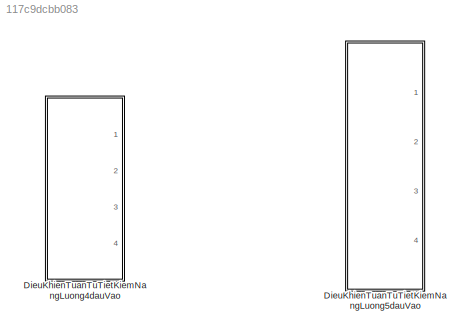
MODEL slx_117c9dcbb083
KIND model
CONFIG AbsTol = auto
CONFIG EnableMultiTasking = off
CONFIG FixedStep = auto
CONFIG MaxStep = auto
CONFIG MinStep = auto
CONFIG RelTol = 1e-3
CONFIG SampleTimeConstraint = Unconstrained
CONFIG Solver = VariableStepAuto
CONFIG SolverName = VariableStepAuto
CONFIG StartTime = 0.0
CONFIG StopTime = 10.0
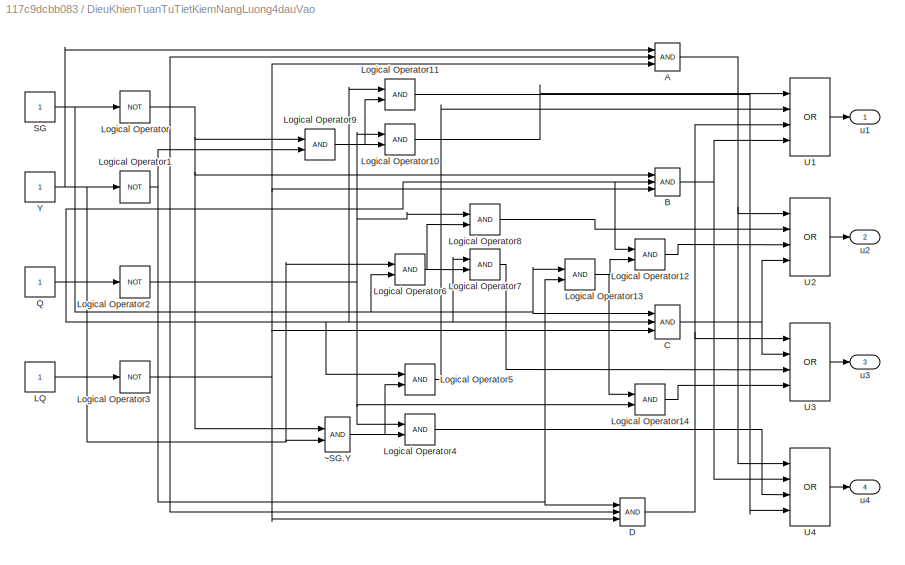
BLOCK [SubSystem] DieuKhienTuanTuTietKiemNangLuong4dauVao 
  Ports = [0, 4]
  RequestExecContextInheritance = off
BLOCK [Logic] DieuKhienTuanTuTietKiemNangLuong4dauVao /A
  AllPortsSameDT = off
  Inputs = 3
  OutDataTypeStr = boolean
  Ports = [3, 1]
BLOCK [Logic] DieuKhienTuanTuTietKiemNangLuong4dauVao /B
  AllPortsSameDT = off
  Inputs = 3
  OutDataTypeStr = boolean
  Ports = [3, 1]
BLOCK [Logic] DieuKhienTuanTuTietKiemNangLuong4dauVao /C
  AllPortsSameDT = off
  Inputs = 3
  OutDataTypeStr = boolean
  Ports = [3, 1]
BLOCK [Logic] DieuKhienTuanTuTietKiemNangLuong4dauVao /D
  AllPortsSameDT = off
  Inputs = 3
  OutDataTypeStr = boolean
  Ports = [3, 1]
BLOCK [Constant] DieuKhienTuanTuTietKiemNangLuong4dauVao /LQ
BLOCK [Logic] DieuKhienTuanTuTietKiemNangLuong4dauVao /Logical Operator
  AllPortsSameDT = off
  Operator = NOT
  OutDataTypeStr = boolean
  Ports = [1, 1]
BLOCK [Logic] DieuKhienTuanTuTietKiemNangLuong4dauVao /Logical Operator1
  AllPortsSameDT = off
  Operator = NOT
  OutDataTypeStr = boolean
  Ports = [1, 1]
BLOCK [Logic] DieuKhienTuanTuTietKiemNangLuong4dauVao /Logical Operator10
  AllPortsSameDT = off
  OutDataTypeStr = boolean
  Ports = [2, 1]
BLOCK [Logic] DieuKhienTuanTuTietKiemNangLuong4dauVao /Logical Operator11
  AllPortsSameDT = off
  OutDataTypeStr = boolean
  Ports = [2, 1]
BLOCK [Logic] DieuKhienTuanTuTietKiemNangLuong4dauVao /Logical Operator12
  AllPortsSameDT = off
  OutDataTypeStr = boolean
  Ports = [2, 1]
BLOCK [Logic] DieuKhienTuanTuTietKiemNangLuong4dauVao /Logical Operator13
  AllPortsSameDT = off
  OutDataTypeStr = boolean
  Ports = [2, 1]
BLOCK [Logic] DieuKhienTuanTuTietKiemNangLuong4dauVao /Logical Operator14
  AllPortsSameDT = off
  OutDataTypeStr = boolean
  Ports = [2, 1]
BLOCK [Logic] DieuKhienTuanTuTietKiemNangLuong4dauVao /Logical Operator2
  AllPortsSameDT = off
  Operator = NOT
  OutDataTypeStr = boolean
  Ports = [1, 1]
BLOCK [Logic] DieuKhienTuanTuTietKiemNangLuong4dauVao /Logical Operator3
  AllPortsSameDT = off
  Operator = NOT
  OutDataTypeStr = boolean
  Ports = [1, 1]
BLOCK [Logic] DieuKhienTuanTuTietKiemNangLuong4dauVao /Logical Operator4
  AllPortsSameDT = off
  OutDataTypeStr = boolean
  Ports = [2, 1]
BLOCK [Logic] DieuKhienTuanTuTietKiemNangLuong4dauVao /Logical Operator5
  AllPortsSameDT = off
  OutDataTypeStr = boolean
  Ports = [2, 1]
BLOCK [Logic] DieuKhienTuanTuTietKiemNangLuong4dauVao /Logical Operator6
  AllPortsSameDT = off
  OutDataTypeStr = boolean
  Ports = [2, 1]
BLOCK [Logic] DieuKhienTuanTuTietKiemNangLuong4dauVao /Logical Operator7
  AllPortsSameDT = off
  OutDataTypeStr = boolean
  Ports = [2, 1]
BLOCK [Logic] DieuKhienTuanTuTietKiemNangLuong4dauVao /Logical Operator8
  AllPortsSameDT = off
  OutDataTypeStr = boolean
  Ports = [2, 1]
BLOCK [Logic] DieuKhienTuanTuTietKiemNangLuong4dauVao /Logical Operator9
  AllPortsSameDT = off
  OutDataTypeStr = boolean
  Ports = [2, 1]
BLOCK [Constant] DieuKhienTuanTuTietKiemNangLuong4dauVao /Q
BLOCK [Constant] DieuKhienTuanTuTietKiemNangLuong4dauVao /SG
BLOCK [Logic] DieuKhienTuanTuTietKiemNangLuong4dauVao /U1
  AllPortsSameDT = off
  Inputs = 4
  Operator = OR
  OutDataTypeStr = boolean
  Ports = [4, 1]
BLOCK [Logic] DieuKhienTuanTuTietKiemNangLuong4dauVao /U2
  AllPortsSameDT = off
  Inputs = 4
  Operator = OR
  OutDataTypeStr = boolean
  Ports = [4, 1]
BLOCK [Logic] DieuKhienTuanTuTietKiemNangLuong4dauVao /U3
  AllPortsSameDT = off
  Inputs = 4
  Operator = OR
  OutDataTypeStr = boolean
  Ports = [4, 1]
BLOCK [Logic] DieuKhienTuanTuTietKiemNangLuong4dauVao /U4
  AllPortsSameDT = off
  Inputs = 4
  Operator = OR
  OutDataTypeStr = boolean
  Ports = [4, 1]
BLOCK [Constant] DieuKhienTuanTuTietKiemNangLuong4dauVao /Y
BLOCK [Outport] DieuKhienTuanTuTietKiemNangLuong4dauVao /u1
  IconDisplay = Port number
BLOCK [Outport] DieuKhienTuanTuTietKiemNangLuong4dauVao /u2 
  IconDisplay = Port number
  Port = 2
BLOCK [Outport] DieuKhienTuanTuTietKiemNangLuong4dauVao /u3
  IconDisplay = Port number
  Port = 3
BLOCK [Outport] DieuKhienTuanTuTietKiemNangLuong4dauVao /u4
  IconDisplay = Port number
  Port = 4
BLOCK [Logic] DieuKhienTuanTuTietKiemNangLuong4dauVao /~SG.Y
  AllPortsSameDT = off
  OutDataTypeStr = boolean
  Ports = [2, 1]
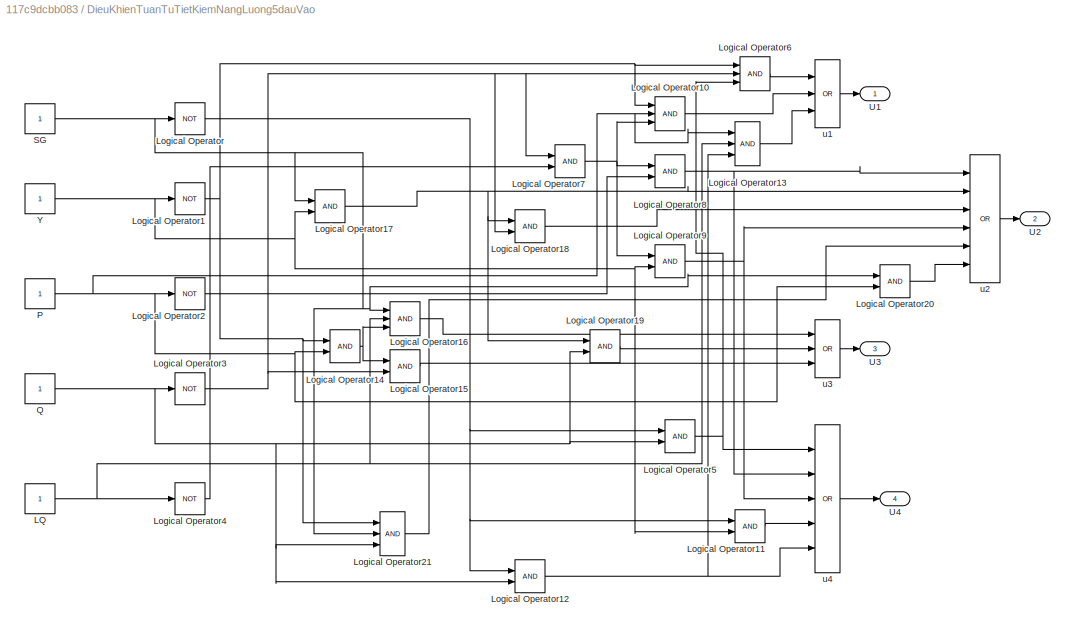
BLOCK [SubSystem] DieuKhienTuanTuTietKiemNangLuong5dauVao 
  Ports = [0, 4]
  RequestExecContextInheritance = off
BLOCK [Constant] DieuKhienTuanTuTietKiemNangLuong5dauVao /LQ
BLOCK [Logic] DieuKhienTuanTuTietKiemNangLuong5dauVao /Logical Operator
  AllPortsSameDT = off
  Operator = NOT
  OutDataTypeStr = boolean
  Ports = [1, 1]
BLOCK [Logic] DieuKhienTuanTuTietKiemNangLuong5dauVao /Logical Operator1
  AllPortsSameDT = off
  Operator = NOT
  OutDataTypeStr = boolean
  Ports = [1, 1]
BLOCK [Logic] DieuKhienTuanTuTietKiemNangLuong5dauVao /Logical Operator10
  AllPortsSameDT = off
  Inputs = 3
  OutDataTypeStr = boolean
  Ports = [3, 1]
BLOCK [Logic] DieuKhienTuanTuTietKiemNangLuong5dauVao /Logical Operator11
  AllPortsSameDT = off
  OutDataTypeStr = boolean
  Ports = [2, 1]
BLOCK [Logic] DieuKhienTuanTuTietKiemNangLuong5dauVao /Logical Operator12
  AllPortsSameDT = off
  OutDataTypeStr = boolean
  Ports = [2, 1]
BLOCK [Logic] DieuKhienTuanTuTietKiemNangLuong5dauVao /Logical Operator13
  AllPortsSameDT = off
  Inputs = 3
  OutDataTypeStr = boolean
  Ports = [3, 1]
BLOCK [Logic] DieuKhienTuanTuTietKiemNangLuong5dauVao /Logical Operator14
  AllPortsSameDT = off
  OutDataTypeStr = boolean
  Ports = [2, 1]
BLOCK [Logic] DieuKhienTuanTuTietKiemNangLuong5dauVao /Logical Operator15
  AllPortsSameDT = off
  OutDataTypeStr = boolean
  Ports = [2, 1]
BLOCK [Logic] DieuKhienTuanTuTietKiemNangLuong5dauVao /Logical Operator16
  AllPortsSameDT = off
  Inputs = 3
  OutDataTypeStr = boolean
  Ports = [3, 1]
BLOCK [Logic] DieuKhienTuanTuTietKiemNangLuong5dauVao /Logical Operator17
  AllPortsSameDT = off
  OutDataTypeStr = boolean
  Ports = [2, 1]
BLOCK [Logic] DieuKhienTuanTuTietKiemNangLuong5dauVao /Logical Operator18
  AllPortsSameDT = off
  OutDataTypeStr = boolean
  Ports = [2, 1]
BLOCK [Logic] DieuKhienTuanTuTietKiemNangLuong5dauVao /Logical Operator19
  AllPortsSameDT = off
  OutDataTypeStr = boolean
  Ports = [2, 1]
BLOCK [Logic] DieuKhienTuanTuTietKiemNangLuong5dauVao /Logical Operator2
  AllPortsSameDT = off
  Operator = NOT
  OutDataTypeStr = boolean
  Ports = [1, 1]
BLOCK [Logic] DieuKhienTuanTuTietKiemNangLuong5dauVao /Logical Operator20
  AllPortsSameDT = off
  OutDataTypeStr = boolean
  Ports = [2, 1]
BLOCK [Logic] DieuKhienTuanTuTietKiemNangLuong5dauVao /Logical Operator21
  AllPortsSameDT = off
  Inputs = 3
  OutDataTypeStr = boolean
  Ports = [3, 1]
BLOCK [Logic] DieuKhienTuanTuTietKiemNangLuong5dauVao /Logical Operator3
  AllPortsSameDT = off
  Operator = NOT
  OutDataTypeStr = boolean
  Ports = [1, 1]
BLOCK [Logic] DieuKhienTuanTuTietKiemNangLuong5dauVao /Logical Operator4
  AllPortsSameDT = off
  Operator = NOT
  OutDataTypeStr = boolean
  Ports = [1, 1]
BLOCK [Logic] DieuKhienTuanTuTietKiemNangLuong5dauVao /Logical Operator5
  AllPortsSameDT = off
  OutDataTypeStr = boolean
  Ports = [2, 1]
BLOCK [Logic] DieuKhienTuanTuTietKiemNangLuong5dauVao /Logical Operator6
  AllPortsSameDT = off
  Inputs = 3
  OutDataTypeStr = boolean
  Ports = [3, 1]
BLOCK [Logic] DieuKhienTuanTuTietKiemNangLuong5dauVao /Logical Operator7
  AllPortsSameDT = off
  OutDataTypeStr = boolean
  Ports = [2, 1]
BLOCK [Logic] DieuKhienTuanTuTietKiemNangLuong5dauVao /Logical Operator8
  AllPortsSameDT = off
  OutDataTypeStr = boolean
  Ports = [2, 1]
BLOCK [Logic] DieuKhienTuanTuTietKiemNangLuong5dauVao /Logical Operator9
  AllPortsSameDT = off
  OutDataTypeStr = boolean
  Ports = [2, 1]
BLOCK [Constant] DieuKhienTuanTuTietKiemNangLuong5dauVao /P
BLOCK [Constant] DieuKhienTuanTuTietKiemNangLuong5dauVao /Q
BLOCK [Constant] DieuKhienTuanTuTietKiemNangLuong5dauVao /SG
BLOCK [Outport] DieuKhienTuanTuTietKiemNangLuong5dauVao /U1
  IconDisplay = Port number
BLOCK [Outport] DieuKhienTuanTuTietKiemNangLuong5dauVao /U2
  IconDisplay = Port number
  Port = 2
BLOCK [Outport] DieuKhienTuanTuTietKiemNangLuong5dauVao /U3
  IconDisplay = Port number
  Port = 3
BLOCK [Outport] DieuKhienTuanTuTietKiemNangLuong5dauVao /U4
  IconDisplay = Port number
  Port = 4
BLOCK [Constant] DieuKhienTuanTuTietKiemNangLuong5dauVao /Y
BLOCK [Logic] DieuKhienTuanTuTietKiemNangLuong5dauVao /u1
  AllPortsSameDT = off
  Inputs = 3
  Operator = OR
  OutDataTypeStr = boolean
  Ports = [3, 1]
BLOCK [Logic] DieuKhienTuanTuTietKiemNangLuong5dauVao /u2
  AllPortsSameDT = off
  Inputs = 6
  Operator = OR
  OutDataTypeStr = boolean
  Ports = [6, 1]
BLOCK [Logic] DieuKhienTuanTuTietKiemNangLuong5dauVao /u3
  AllPortsSameDT = off
  Inputs = 3
  Operator = OR
  OutDataTypeStr = boolean
  Ports = [3, 1]
BLOCK [Logic] DieuKhienTuanTuTietKiemNangLuong5dauVao /u4
  AllPortsSameDT = off
  Inputs = 5
  Operator = OR
  OutDataTypeStr = boolean
  Ports = [5, 1]
NET DieuKhienTuanTuTietKiemNangLuong4dauVao /A:1 -> DieuKhienTuanTuTietKiemNangLuong4dauVao /U2:1, DieuKhienTuanTuTietKiemNangLuong4dauVao /U4:1
NET DieuKhienTuanTuTietKiemNangLuong4dauVao /B:1 -> DieuKhienTuanTuTietKiemNangLuong4dauVao /U1:4, DieuKhienTuanTuTietKiemNangLuong4dauVao /U4:2
NET DieuKhienTuanTuTietKiemNangLuong4dauVao /C:1 -> DieuKhienTuanTuTietKiemNangLuong4dauVao /U2:4, DieuKhienTuanTuTietKiemNangLuong4dauVao /U3:2
NET DieuKhienTuanTuTietKiemNangLuong4dauVao /D:1 -> DieuKhienTuanTuTietKiemNangLuong4dauVao /U1:3, DieuKhienTuanTuTietKiemNangLuong4dauVao /U3:1
LINE DieuKhienTuanTuTietKiemNangLuong4dauVao /LQ:1 -> DieuKhienTuanTuTietKiemNangLuong4dauVao /Logical Operator3:1
LINE DieuKhienTuanTuTietKiemNangLuong4dauVao /Logical Operator10:1 -> DieuKhienTuanTuTietKiemNangLuong4dauVao /U1:1
LINE DieuKhienTuanTuTietKiemNangLuong4dauVao /Logical Operator11:1 -> DieuKhienTuanTuTietKiemNangLuong4dauVao /U4:4
LINE DieuKhienTuanTuTietKiemNangLuong4dauVao /Logical Operator12:1 -> DieuKhienTuanTuTietKiemNangLuong4dauVao /U2:3
NET DieuKhienTuanTuTietKiemNangLuong4dauVao /Logical Operator13:1 -> DieuKhienTuanTuTietKiemNangLuong4dauVao /Logical Operator12:2, DieuKhienTuanTuTietKiemNangLuong4dauVao /Logical Operator14:1
LINE DieuKhienTuanTuTietKiemNangLuong4dauVao /Logical Operator14:1 -> DieuKhienTuanTuTietKiemNangLuong4dauVao /U3:4
NET DieuKhienTuanTuTietKiemNangLuong4dauVao /Logical Operator1:1 -> DieuKhienTuanTuTietKiemNangLuong4dauVao /D:1, DieuKhienTuanTuTietKiemNangLuong4dauVao /Logical Operator13:2, DieuKhienTuanTuTietKiemNangLuong4dauVao /Logical Operator9:2
NET DieuKhienTuanTuTietKiemNangLuong4dauVao /Logical Operator2:1 -> DieuKhienTuanTuTietKiemNangLuong4dauVao /A:2, DieuKhienTuanTuTietKiemNangLuong4dauVao /D:2, DieuKhienTuanTuTietKiemNangLuong4dauVao /Logical Operator10:1, DieuKhienTuanTuTietKiemNangLuong4dauVao /Logical Operator14:2, DieuKhienTuanTuTietKiemNangLuong4dauVao /Logical Operator4:1, DieuKhienTuanTuTietKiemNangLuong4dauVao /Logical Operator8:1
NET DieuKhienTuanTuTietKiemNangLuong4dauVao /Logical Operator3:1 -> DieuKhienTuanTuTietKiemNangLuong4dauVao /A:3, DieuKhienTuanTuTietKiemNangLuong4dauVao /B:3, DieuKhienTuanTuTietKiemNangLuong4dauVao /C:3, DieuKhienTuanTuTietKiemNangLuong4dauVao /D:3
LINE DieuKhienTuanTuTietKiemNangLuong4dauVao /Logical Operator4:1 -> DieuKhienTuanTuTietKiemNangLuong4dauVao /U4:3
LINE DieuKhienTuanTuTietKiemNangLuong4dauVao /Logical Operator5:1 -> DieuKhienTuanTuTietKiemNangLuong4dauVao /U1:2
NET DieuKhienTuanTuTietKiemNangLuong4dauVao /Logical Operator6:1 -> DieuKhienTuanTuTietKiemNangLuong4dauVao /Logical Operator7:2, DieuKhienTuanTuTietKiemNangLuong4dauVao /Logical Operator8:2
LINE DieuKhienTuanTuTietKiemNangLuong4dauVao /Logical Operator7:1 -> DieuKhienTuanTuTietKiemNangLuong4dauVao /U3:3
LINE DieuKhienTuanTuTietKiemNangLuong4dauVao /Logical Operator8:1 -> DieuKhienTuanTuTietKiemNangLuong4dauVao /U2:2
NET DieuKhienTuanTuTietKiemNangLuong4dauVao /Logical Operator9:1 -> DieuKhienTuanTuTietKiemNangLuong4dauVao /Logical Operator10:2, DieuKhienTuanTuTietKiemNangLuong4dauVao /Logical Operator11:2
NET DieuKhienTuanTuTietKiemNangLuong4dauVao /Logical Operator:1 -> DieuKhienTuanTuTietKiemNangLuong4dauVao /B:1, DieuKhienTuanTuTietKiemNangLuong4dauVao /Logical Operator9:1, DieuKhienTuanTuTietKiemNangLuong4dauVao /~SG.Y:1
NET DieuKhienTuanTuTietKiemNangLuong4dauVao /Q:1 -> DieuKhienTuanTuTietKiemNangLuong4dauVao /B:2, DieuKhienTuanTuTietKiemNangLuong4dauVao /C:2, DieuKhienTuanTuTietKiemNangLuong4dauVao /Logical Operator11:1, DieuKhienTuanTuTietKiemNangLuong4dauVao /Logical Operator12:1, DieuKhienTuanTuTietKiemNangLuong4dauVao /Logical Operator2:1, DieuKhienTuanTuTietKiemNangLuong4dauVao /Logical Operator5:1, DieuKhienTuanTuTietKiemNangLuong4dauVao /Logical Operator7:1
NET DieuKhienTuanTuTietKiemNangLuong4dauVao /SG:1 -> DieuKhienTuanTuTietKiemNangLuong4dauVao /C:1, DieuKhienTuanTuTietKiemNangLuong4dauVao /Logical Operator13:1, DieuKhienTuanTuTietKiemNangLuong4dauVao /Logical Operator6:2, DieuKhienTuanTuTietKiemNangLuong4dauVao /Logical Operator:1
LINE DieuKhienTuanTuTietKiemNangLuong4dauVao /U1:1 -> DieuKhienTuanTuTietKiemNangLuong4dauVao /u1:1
LINE DieuKhienTuanTuTietKiemNangLuong4dauVao /U2:1 -> DieuKhienTuanTuTietKiemNangLuong4dauVao /u2 :1
LINE DieuKhienTuanTuTietKiemNangLuong4dauVao /U3:1 -> DieuKhienTuanTuTietKiemNangLuong4dauVao /u3:1
LINE DieuKhienTuanTuTietKiemNangLuong4dauVao /U4:1 -> DieuKhienTuanTuTietKiemNangLuong4dauVao /u4:1
NET DieuKhienTuanTuTietKiemNangLuong4dauVao /Y:1 -> DieuKhienTuanTuTietKiemNangLuong4dauVao /A:1, DieuKhienTuanTuTietKiemNangLuong4dauVao /Logical Operator1:1, DieuKhienTuanTuTietKiemNangLuong4dauVao /Logical Operator6:1, DieuKhienTuanTuTietKiemNangLuong4dauVao /~SG.Y:2
NET DieuKhienTuanTuTietKiemNangLuong4dauVao /~SG.Y:1 -> DieuKhienTuanTuTietKiemNangLuong4dauVao /Logical Operator4:2, DieuKhienTuanTuTietKiemNangLuong4dauVao /Logical Operator5:2
NET DieuKhienTuanTuTietKiemNangLuong5dauVao /LQ:1 -> DieuKhienTuanTuTietKiemNangLuong5dauVao /Logical Operator13:2, DieuKhienTuanTuTietKiemNangLuong5dauVao /Logical Operator16:2, DieuKhienTuanTuTietKiemNangLuong5dauVao /Logical Operator4:1
LINE DieuKhienTuanTuTietKiemNangLuong5dauVao /Logical Operator10:1 -> DieuKhienTuanTuTietKiemNangLuong5dauVao /u1:2
LINE DieuKhienTuanTuTietKiemNangLuong5dauVao /Logical Operator11:1 -> DieuKhienTuanTuTietKiemNangLuong5dauVao /u4:4
NET DieuKhienTuanTuTietKiemNangLuong5dauVao /Logical Operator12:1 -> DieuKhienTuanTuTietKiemNangLuong5dauVao /Logical Operator13:3, DieuKhienTuanTuTietKiemNangLuong5dauVao /u4:5
LINE DieuKhienTuanTuTietKiemNangLuong5dauVao /Logical Operator13:1 -> DieuKhienTuanTuTietKiemNangLuong5dauVao /u1:3
NET DieuKhienTuanTuTietKiemNangLuong5dauVao /Logical Operator14:1 -> DieuKhienTuanTuTietKiemNangLuong5dauVao /Logical Operator15:1, DieuKhienTuanTuTietKiemNangLuong5dauVao /Logical Operator16:3
LINE DieuKhienTuanTuTietKiemNangLuong5dauVao /Logical Operator15:1 -> DieuKhienTuanTuTietKiemNangLuong5dauVao /u3:3
LINE DieuKhienTuanTuTietKiemNangLuong5dauVao /Logical Operator16:1 -> DieuKhienTuanTuTietKiemNangLuong5dauVao /u3:1
NET DieuKhienTuanTuTietKiemNangLuong5dauVao /Logical Operator17:1 -> DieuKhienTuanTuTietKiemNangLuong5dauVao /Logical Operator18:1, DieuKhienTuanTuTietKiemNangLuong5dauVao /Logical Operator19:1, DieuKhienTuanTuTietKiemNangLuong5dauVao /u2:2
LINE DieuKhienTuanTuTietKiemNangLuong5dauVao /Logical Operator18:1 -> DieuKhienTuanTuTietKiemNangLuong5dauVao /u2:3
LINE DieuKhienTuanTuTietKiemNangLuong5dauVao /Logical Operator19:1 -> DieuKhienTuanTuTietKiemNangLuong5dauVao /u3:2
NET DieuKhienTuanTuTietKiemNangLuong5dauVao /Logical Operator1:1 -> DieuKhienTuanTuTietKiemNangLuong5dauVao /Logical Operator10:1, DieuKhienTuanTuTietKiemNangLuong5dauVao /Logical Operator14:1, DieuKhienTuanTuTietKiemNangLuong5dauVao /Logical Operator21:1, DieuKhienTuanTuTietKiemNangLuong5dauVao /Logical Operator6:1
LINE DieuKhienTuanTuTietKiemNangLuong5dauVao /Logical Operator20:1 -> DieuKhienTuanTuTietKiemNangLuong5dauVao /u2:6
LINE DieuKhienTuanTuTietKiemNangLuong5dauVao /Logical Operator21:1 -> DieuKhienTuanTuTietKiemNangLuong5dauVao /u2:5
LINE DieuKhienTuanTuTietKiemNangLuong5dauVao /Logical Operator2:1 -> DieuKhienTuanTuTietKiemNangLuong5dauVao /Logical Operator8:2
NET DieuKhienTuanTuTietKiemNangLuong5dauVao /Logical Operator3:1 -> DieuKhienTuanTuTietKiemNangLuong5dauVao /Logical Operator15:2, DieuKhienTuanTuTietKiemNangLuong5dauVao /Logical Operator18:2, DieuKhienTuanTuTietKiemNangLuong5dauVao /Logical Operator6:2, DieuKhienTuanTuTietKiemNangLuong5dauVao /Logical Operator7:1
LINE DieuKhienTuanTuTietKiemNangLuong5dauVao /Logical Operator4:1 -> DieuKhienTuanTuTietKiemNangLuong5dauVao /Logical Operator7:2
NET DieuKhienTuanTuTietKiemNangLuong5dauVao /Logical Operator5:1 -> DieuKhienTuanTuTietKiemNangLuong5dauVao /Logical Operator6:3, DieuKhienTuanTuTietKiemNangLuong5dauVao /u4:1
LINE DieuKhienTuanTuTietKiemNangLuong5dauVao /Logical Operator6:1 -> DieuKhienTuanTuTietKiemNangLuong5dauVao /u1:1
NET DieuKhienTuanTuTietKiemNangLuong5dauVao /Logical Operator7:1 -> DieuKhienTuanTuTietKiemNangLuong5dauVao /Logical Operator10:3, DieuKhienTuanTuTietKiemNangLuong5dauVao /Logical Operator8:1, DieuKhienTuanTuTietKiemNangLuong5dauVao /Logical Operator9:1
NET DieuKhienTuanTuTietKiemNangLuong5dauVao /Logical Operator8:1 -> DieuKhienTuanTuTietKiemNangLuong5dauVao /u2:1, DieuKhienTuanTuTietKiemNangLuong5dauVao /u4:2
NET DieuKhienTuanTuTietKiemNangLuong5dauVao /Logical Operator9:1 -> DieuKhienTuanTuTietKiemNangLuong5dauVao /u2:4, DieuKhienTuanTuTietKiemNangLuong5dauVao /u4:3
NET DieuKhienTuanTuTietKiemNangLuong5dauVao /Logical Operator:1 -> DieuKhienTuanTuTietKiemNangLuong5dauVao /Logical Operator11:1, DieuKhienTuanTuTietKiemNangLuong5dauVao /Logical Operator12:1, DieuKhienTuanTuTietKiemNangLuong5dauVao /Logical Operator5:1
NET DieuKhienTuanTuTietKiemNangLuong5dauVao /P:1 -> DieuKhienTuanTuTietKiemNangLuong5dauVao /Logical Operator10:2, DieuKhienTuanTuTietKiemNangLuong5dauVao /Logical Operator13:1, DieuKhienTuanTuTietKiemNangLuong5dauVao /Logical Operator14:2, DieuKhienTuanTuTietKiemNangLuong5dauVao /Logical Operator20:2, DieuKhienTuanTuTietKiemNangLuong5dauVao /Logical Operator2:1
NET DieuKhienTuanTuTietKiemNangLuong5dauVao /Q:1 -> DieuKhienTuanTuTietKiemNangLuong5dauVao /Logical Operator12:2, DieuKhienTuanTuTietKiemNangLuong5dauVao /Logical Operator19:2, DieuKhienTuanTuTietKiemNangLuong5dauVao /Logical Operator21:3, DieuKhienTuanTuTietKiemNangLuong5dauVao /Logical Operator3:1, DieuKhienTuanTuTietKiemNangLuong5dauVao /Logical Operator5:2
NET DieuKhienTuanTuTietKiemNangLuong5dauVao /SG:1 -> DieuKhienTuanTuTietKiemNangLuong5dauVao /Logical Operator16:1, DieuKhienTuanTuTietKiemNangLuong5dauVao /Logical Operator17:1, DieuKhienTuanTuTietKiemNangLuong5dauVao /Logical Operator20:1, DieuKhienTuanTuTietKiemNangLuong5dauVao /Logical Operator21:2, DieuKhienTuanTuTietKiemNangLuong5dauVao /Logical Operator:1
NET DieuKhienTuanTuTietKiemNangLuong5dauVao /Y:1 -> DieuKhienTuanTuTietKiemNangLuong5dauVao /Logical Operator11:2, DieuKhienTuanTuTietKiemNangLuong5dauVao /Logical Operator17:2, DieuKhienTuanTuTietKiemNangLuong5dauVao /Logical Operator1:1, DieuKhienTuanTuTietKiemNangLuong5dauVao /Logical Operator9:2
LINE DieuKhienTuanTuTietKiemNangLuong5dauVao /u1:1 -> DieuKhienTuanTuTietKiemNangLuong5dauVao /U1:1
LINE DieuKhienTuanTuTietKiemNangLuong5dauVao /u2:1 -> DieuKhienTuanTuTietKiemNangLuong5dauVao /U2:1
LINE DieuKhienTuanTuTietKiemNangLuong5dauVao /u3:1 -> DieuKhienTuanTuTietKiemNangLuong5dauVao /U3:1
LINE DieuKhienTuanTuTietKiemNangLuong5dauVao /u4:1 -> DieuKhienTuanTuTietKiemNangLuong5dauVao /U4:1
note: NET lines group one-source signal fan-out (src -> all destinations, sorted); 1:1 wires keep LINE
